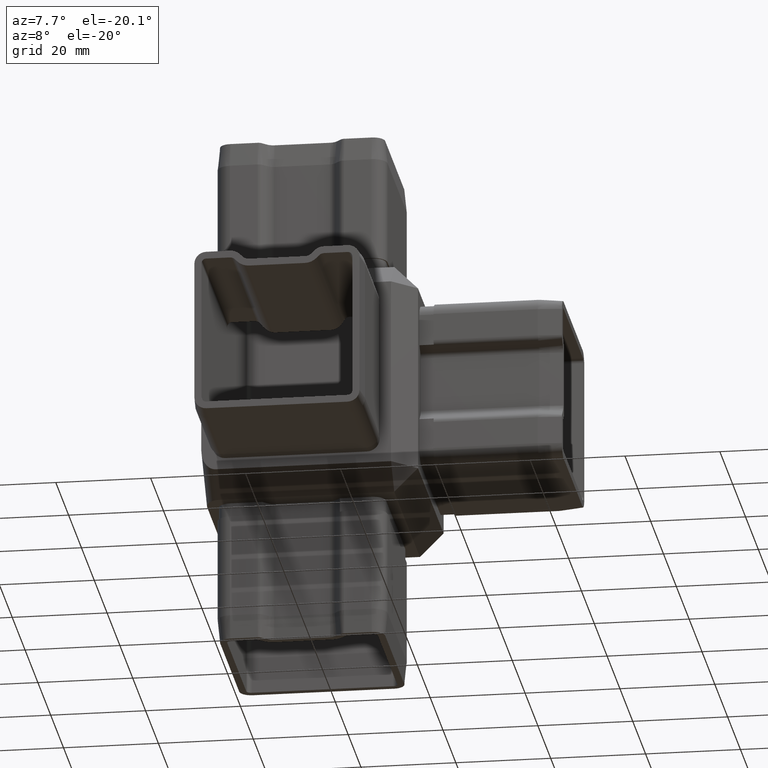
[diagram: clean part render]
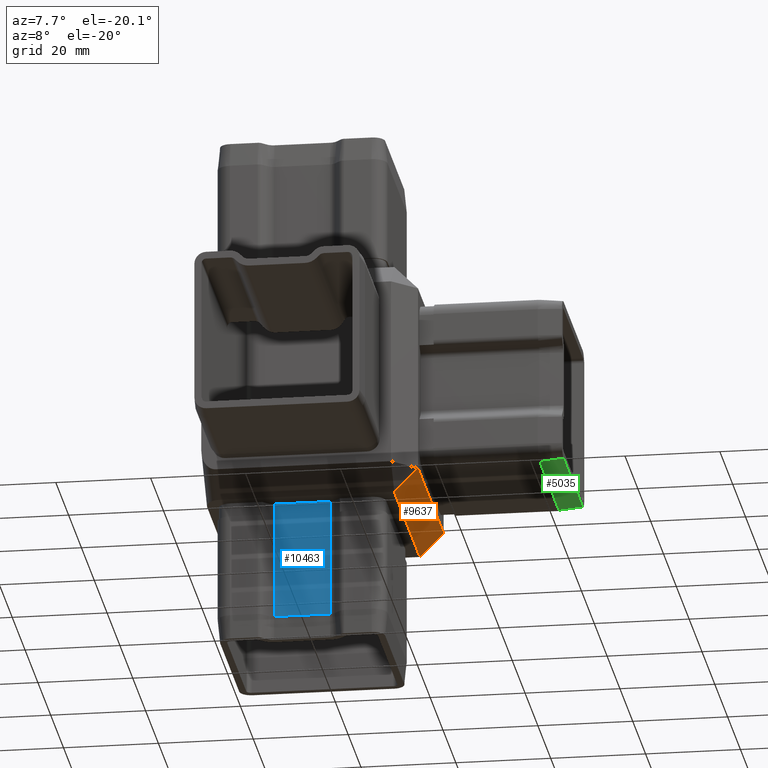
[diagram: same view with three faces highlighted in distinct colors, each labeled with its STEP entity id]
A machine part, auxiliary view with three faces highlighted in distinct colors.
Their STEP definitions:

[orange] entity #9637 — the highlighted planar face has unit normal (-0.7071, -0, 0.7071).
#106 = CARTESIAN_POINT ( 'NONE',  ( 22.49999999999999600, 22.49999999999999300, -19.99999999999999600 ) ) ;
#1870 = CARTESIAN_POINT ( 'NONE',  ( 19.99999999999998600, -17.49999999999999600, -22.50000000000000400 ) ) ;
#4695 = VECTOR ( 'NONE', #10746, 1000.000000000000000 ) ;
#5124 = LINE ( 'NONE', #1870, #9122 ) ;
#5730 = DIRECTION ( 'NONE',  ( -0.7071067811865491300, 5.451709925985343800E-017, -0.7071067811865459100 ) ) ;
#5783 = CARTESIAN_POINT ( 'NONE',  ( 17.49999999999997900, -17.50000000000000000, -25.00000000000000000 ) ) ;
#6489 = CARTESIAN_POINT ( 'NONE',  ( 17.49999999999995400, 22.49999999999999300, -25.00000000000000000 ) ) ;
#6816 = VECTOR ( 'NONE', #5730, 1000.000000000000000 ) ;
#7704 = CARTESIAN_POINT ( 'NONE',  ( 22.49999999999999600, 22.49999999999999300, -19.99999999999999600 ) ) ;
#8004 = VERTEX_POINT ( 'NONE', #6489 ) ;
#9122 = VECTOR ( 'NONE', #13962, 1000.000000000000100 ) ;
#9438 = FACE_OUTER_BOUND ( 'NONE', #18644, .T. ) ;
#9637 = ADVANCED_FACE ( 'NONE', ( #9438 ), #13675, .F. ) ;
#10247 = ORIENTED_EDGE ( 'NONE', *, *, #11451, .F. ) ;
#10746 = DIRECTION ( 'NONE',  ( -2.312964634635743000E-016, 1.000000000000000000, -0.0000000000000000000 ) ) ;
#11199 = EDGE_CURVE ( 'NONE', #8004, #16104, #19391, .T. ) ;
#11451 = EDGE_CURVE ( 'NONE', #13810, #8004, #12975, .T. ) ;
#12241 = EDGE_CURVE ( 'NONE', #15323, #13810, #12729, .T. ) ;
#12293 = CARTESIAN_POINT ( 'NONE',  ( 22.50000000000000700, -17.49999999999999600, -19.99999999999999600 ) ) ;
#12356 = DIRECTION ( 'NONE',  ( -0.7071067811865459100, -1.635512977795595400E-016, 0.7071067811865491300 ) ) ;
#12729 = LINE ( 'NONE', #7704, #4695 ) ;
#12816 = CARTESIAN_POINT ( 'NONE',  ( 17.49999999999997200, 4.047688110612543100E-015, -25.00000000000000000 ) ) ;
#12975 = LINE ( 'NONE', #16236, #6816 ) ;
#12994 = VECTOR ( 'NONE', #16882, 1000.000000000000000 ) ;
#13133 = EDGE_CURVE ( 'NONE', #16104, #15323, #5124, .T. ) ;
#13675 = PLANE ( 'NONE',  #17855 ) ;
#13810 = VERTEX_POINT ( 'NONE', #18677 ) ;
#13962 = DIRECTION ( 'NONE',  ( 0.7071067811865489100, 6.730369402342440100E-016, 0.7071067811865460200 ) ) ;
#15323 = VERTEX_POINT ( 'NONE', #12293 ) ;
#15379 = ORIENTED_EDGE ( 'NONE', *, *, #11199, .F. ) ;
#16104 = VERTEX_POINT ( 'NONE', #5783 ) ;
#16236 = CARTESIAN_POINT ( 'NONE',  ( 22.49999999999999600, 22.49999999999999300, -19.99999999999999600 ) ) ;
#16790 = DIRECTION ( 'NONE',  ( -2.312964634635743000E-016, 1.000000000000000000, -0.0000000000000000000 ) ) ;
#16882 = DIRECTION ( 'NONE',  ( 2.312964634635743000E-016, -1.000000000000000000, 0.0000000000000000000 ) ) ;
#17855 = AXIS2_PLACEMENT_3D ( 'NONE', #106, #12356, #16790 ) ;
#18644 = EDGE_LOOP ( 'NONE', ( #10247, #19191, #19361, #15379 ) ) ;
#18677 = CARTESIAN_POINT ( 'NONE',  ( 22.49999999999999600, 22.49999999999999300, -19.99999999999999600 ) ) ;
#19191 = ORIENTED_EDGE ( 'NONE', *, *, #12241, .F. ) ;
#19361 = ORIENTED_EDGE ( 'NONE', *, *, #13133, .F. ) ;
#19391 = LINE ( 'NONE', #12816, #12994 ) ;

[blue] entity #10463 — the highlighted planar face has unit normal (0, -1, 0).
#385 = CARTESIAN_POINT ( 'NONE',  ( -8.378679656440354500, -13.39999999999997500, -55.00000000000000000 ) ) ;
#2758 = VERTEX_POINT ( 'NONE', #6968 ) ;
#3347 = LINE ( 'NONE', #385, #5450 ) ;
#3748 = LINE ( 'NONE', #5178, #19412 ) ;
#3767 = LINE ( 'NONE', #12110, #8756 ) ;
#4743 = LINE ( 'NONE', #18030, #15151 ) ;
#4790 = ORIENTED_EDGE ( 'NONE', *, *, #8620, .F. ) ;
#5005 = VERTEX_POINT ( 'NONE', #13181 ) ;
#5178 = CARTESIAN_POINT ( 'NONE',  ( 3.378679656440357600, -13.39999999999998100, -55.00000000000000000 ) ) ;
#5450 = VECTOR ( 'NONE', #13057, 1000.000000000000000 ) ;
#5963 = CARTESIAN_POINT ( 'NONE',  ( 3.378679656440354100, -13.39999999999997900, -50.00000000000000700 ) ) ;
#6201 = DIRECTION ( 'NONE',  ( 0.0000000000000000000, -1.000000000000000000, 0.0000000000000000000 ) ) ;
#6323 = AXIS2_PLACEMENT_3D ( 'NONE', #10822, #6201, #12006 ) ;
#6815 = DIRECTION ( 'NONE',  ( -0.0000000000000000000, -0.0000000000000000000, 1.000000000000000000 ) ) ;
#6885 = EDGE_CURVE ( 'NONE', #10060, #2758, #3347, .T. ) ;
#6968 = CARTESIAN_POINT ( 'NONE',  ( -8.378679656440354500, -13.39999999999997500, -25.00000000000000000 ) ) ;
#7238 = EDGE_CURVE ( 'NONE', #2758, #5005, #3767, .T. ) ;
#7572 = VERTEX_POINT ( 'NONE', #5963 ) ;
#7574 = PLANE ( 'NONE',  #6323 ) ;
#8620 = EDGE_CURVE ( 'NONE', #7572, #10060, #4743, .T. ) ;
#8756 = VECTOR ( 'NONE', #15798, 1000.000000000000000 ) ;
#10060 = VERTEX_POINT ( 'NONE', #17067 ) ;
#10463 = ADVANCED_FACE ( 'NONE', ( #11126 ), #7574, .T. ) ;
#10605 = EDGE_CURVE ( 'NONE', #7572, #5005, #3748, .T. ) ;
#10822 = CARTESIAN_POINT ( 'NONE',  ( 3.378679656440357600, -13.39999999999997500, -55.00000000000000000 ) ) ;
#11126 = FACE_OUTER_BOUND ( 'NONE', #15138, .T. ) ;
#11208 = ORIENTED_EDGE ( 'NONE', *, *, #7238, .F. ) ;
#11782 = DIRECTION ( 'NONE',  ( -1.000000000000000000, 1.475436303181055400E-016, 0.0000000000000000000 ) ) ;
#12006 = DIRECTION ( 'NONE',  ( 0.0000000000000000000, -0.0000000000000000000, -1.000000000000000000 ) ) ;
#12110 = CARTESIAN_POINT ( 'NONE',  ( 3.378679656440357600, -13.39999999999997500, -25.00000000000000000 ) ) ;
#13019 = ORIENTED_EDGE ( 'NONE', *, *, #10605, .T. ) ;
#13057 = DIRECTION ( 'NONE',  ( -0.0000000000000000000, -0.0000000000000000000, 1.000000000000000000 ) ) ;
#13181 = CARTESIAN_POINT ( 'NONE',  ( 3.378679656440357600, -13.39999999999998100, -25.00000000000000000 ) ) ;
#15138 = EDGE_LOOP ( 'NONE', ( #18424, #4790, #13019, #11208 ) ) ;
#15151 = VECTOR ( 'NONE', #11782, 1000.000000000000000 ) ;
#15798 = DIRECTION ( 'NONE',  ( 1.000000000000000000, 0.0000000000000000000, 0.0000000000000000000 ) ) ;
#17067 = CARTESIAN_POINT ( 'NONE',  ( -8.378679656440358100, -13.39999999999997700, -50.00000000000000700 ) ) ;
#18030 = CARTESIAN_POINT ( 'NONE',  ( 3.378679656440354100, -13.39999999999997900, -50.00000000000000700 ) ) ;
#18424 = ORIENTED_EDGE ( 'NONE', *, *, #6885, .F. ) ;
#19412 = VECTOR ( 'NONE', #6815, 1000.000000000000000 ) ;

[green] entity #5035 — the highlighted planar face has unit normal (0.0995, 0, -0.995).
#168 = PLANE ( 'NONE',  #305 ) ;
#305 = AXIS2_PLACEMENT_3D ( 'NONE', #3213, #7778, #7846 ) ;
#754 = DIRECTION ( 'NONE',  ( -2.328487887217192900E-016, 1.000000000000000000, 0.0000000000000000000 ) ) ;
#2256 = CARTESIAN_POINT ( 'NONE',  ( 47.50000000000000000, 17.39999999999999500, -17.90000000000003100 ) ) ;
#2353 = LINE ( 'NONE', #17434, #10146 ) ;
#2820 = CARTESIAN_POINT ( 'NONE',  ( 52.50000000000000700, -12.39999999999997200, -17.40000000000002700 ) ) ;
#3213 = CARTESIAN_POINT ( 'NONE',  ( 52.50000000000000700, -12.39999999999997200, -17.40000000000002700 ) ) ;
#3580 = ORIENTED_EDGE ( 'NONE', *, *, #13584, .F. ) ;
#3658 = VECTOR ( 'NONE', #17978, 1000.000000000000100 ) ;
#4714 = CARTESIAN_POINT ( 'NONE',  ( 52.50000000000000700, -12.39999999999997200, -17.40000000000002700 ) ) ;
#5035 = ADVANCED_FACE ( 'NONE', ( #10123 ), #168, .T. ) ;
#6335 = LINE ( 'NONE', #4714, #13175 ) ;
#6384 = VERTEX_POINT ( 'NONE', #2256 ) ;
#7778 = DIRECTION ( 'NONE',  ( 0.09950371902099863800, 2.316932044734583200E-017, -0.9950371902099892600 ) ) ;
#7846 = DIRECTION ( 'NONE',  ( -0.9950371902099891500, 0.0000000000000000000, -0.09950371902099862400 ) ) ;
#8422 = CARTESIAN_POINT ( 'NONE',  ( 52.50000000000000700, -12.39999999999997200, -17.40000000000002700 ) ) ;
#8495 = ORIENTED_EDGE ( 'NONE', *, *, #12540, .T. ) ;
#9865 = VECTOR ( 'NONE', #14775, 1000.000000000000000 ) ;
#10123 = FACE_OUTER_BOUND ( 'NONE', #16732, .T. ) ;
#10146 = VECTOR ( 'NONE', #754, 1000.000000000000000 ) ;
#10311 = VERTEX_POINT ( 'NONE', #16028 ) ;
#11102 = VERTEX_POINT ( 'NONE', #18141 ) ;
#11713 = LINE ( 'NONE', #11729, #3658 ) ;
#11729 = CARTESIAN_POINT ( 'NONE',  ( 52.50000000000000000, 17.39999999999999900, -17.40000000000002700 ) ) ;
#12540 = EDGE_CURVE ( 'NONE', #13409, #11102, #6335, .T. ) ;
#12774 = ORIENTED_EDGE ( 'NONE', *, *, #17872, .F. ) ;
#13175 = VECTOR ( 'NONE', #16834, 1000.000000000000100 ) ;
#13409 = VERTEX_POINT ( 'NONE', #8422 ) ;
#13584 = EDGE_CURVE ( 'NONE', #10311, #6384, #11713, .T. ) ;
#14775 = DIRECTION ( 'NONE',  ( -2.328487887217192900E-016, 1.000000000000000000, 0.0000000000000000000 ) ) ;
#15775 = ORIENTED_EDGE ( 'NONE', *, *, #16340, .T. ) ;
#16028 = CARTESIAN_POINT ( 'NONE',  ( 52.50000000000000000, 17.39999999999999900, -17.40000000000002700 ) ) ;
#16340 = EDGE_CURVE ( 'NONE', #11102, #6384, #2353, .T. ) ;
#16732 = EDGE_LOOP ( 'NONE', ( #8495, #15775, #3580, #12774 ) ) ;
#16834 = DIRECTION ( 'NONE',  ( -0.9950371902099891500, -8.453269827361691000E-016, -0.09950371902099862400 ) ) ;
#17434 = CARTESIAN_POINT ( 'NONE',  ( 47.50000000000000700, -12.39999999999997700, -17.90000000000003100 ) ) ;
#17872 = EDGE_CURVE ( 'NONE', #13409, #10311, #18449, .T. ) ;
#17978 = DIRECTION ( 'NONE',  ( -0.9950371902099891500, -8.453269827361691000E-016, -0.09950371902099862400 ) ) ;
#18141 = CARTESIAN_POINT ( 'NONE',  ( 47.50000000000000700, -12.39999999999997700, -17.90000000000003100 ) ) ;
#18449 = LINE ( 'NONE', #2820, #9865 ) ;